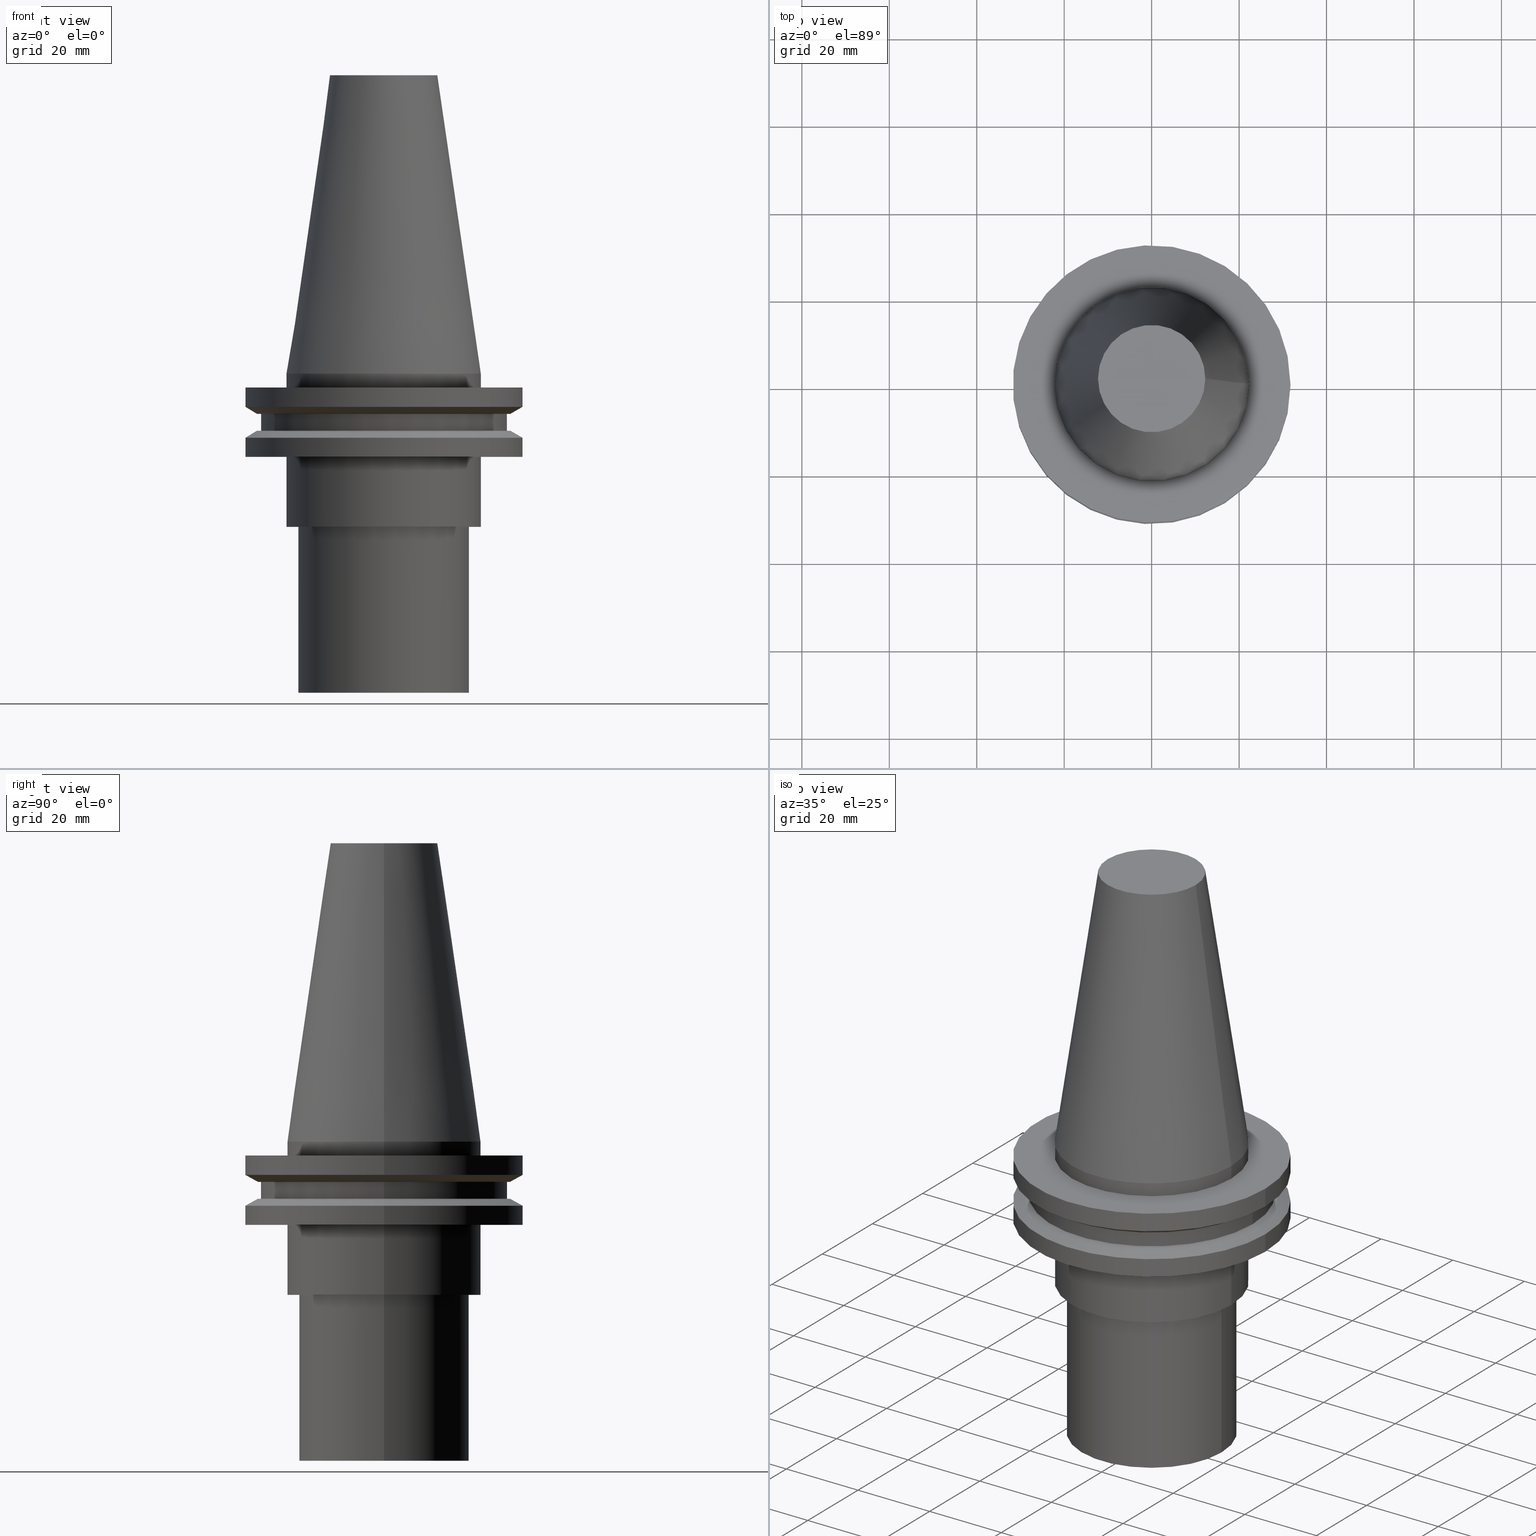
[diagram: canonical four-view strip — front | top / right | iso, engineering-drawing reading convention]
A machine part, canonical four-view strip (front | top / right | iso — engineering-drawing reading convention). The complete STEP part file that produces these views, byte-faithful:
ISO-10303-21;
HEADER;
FILE_DESCRIPTION (( 'STEP AP203' ),
    '1' );
FILE_NAME ('11.326.841.stp',
    '2022-03-09T15:06:43',
    ( '' ),
    ( '' ),
    'SwSTEP 2.0',
    'SolidWorks 2021',
    '' );
FILE_SCHEMA (( 'CONFIG_CONTROL_DESIGN' ));
ENDSEC;

DATA;
#1 = PERSON_AND_ORGANIZATION ( #208, #95 ) ;
#2 = FACE_BOUND ( 'NONE', #115, .T. ) ;
#3 = MECHANICAL_CONTEXT ( 'NONE', #206, 'mechanical' ) ;
#4 = DIRECTION ( 'NONE',  ( 0.000000000000000000, 0.000000000000000000, -1.000000000000000000 ) ) ;
#5 = CIRCLE ( 'NONE', #65, 12.27178102086201150 ) ;
#6 = AXIS2_PLACEMENT_3D ( 'NONE', #21, #49, #29 ) ;
#7 = DIRECTION ( 'NONE',  ( 1.000000000000000000, 0.000000000000000000, 0.000000000000000000 ) ) ;
#8 = DIRECTION ( 'NONE',  ( 1.000000000000000000, 0.000000000000000000, 0.000000000000000000 ) ) ;
#9 = DIRECTION ( 'NONE',  ( -0.000000000000000000, -0.000000000000000000, 1.000000000000000000 ) ) ;
#10 = APPROVAL ( #144, 'UNSPECIFIED' ) ;
#11 = EDGE_CURVE ( 'NONE', #199, #199, #195, .T. ) ;
#12 = AXIS2_PLACEMENT_3D ( 'NONE', #288, #46, #253 ) ;
#13 = PLANE ( 'NONE',  #264 ) ;
#14 = AXIS2_PLACEMENT_3D ( 'NONE', #183, #96, #8 ) ;
#15 = FACE_OUTER_BOUND ( 'NONE', #286, .T. ) ;
#16 = CC_DESIGN_PERSON_AND_ORGANIZATION_ASSIGNMENT ( #123, #274, ( #26 ) ) ;
#17 = CYLINDRICAL_SURFACE ( 'NONE', #330, 31.75000000000000000 ) ;
#18 = DIRECTION ( 'NONE',  ( 1.000000000000000000, 0.000000000000000000, 0.000000000000000000 ) ) ;
#19 = CIRCLE ( 'NONE', #299, 19.49999999999999289 ) ;
#20 = DIRECTION ( 'NONE',  ( -1.000000000000000000, 0.000000000000000000, -0.000000000000000000 ) ) ;
#21 = CARTESIAN_POINT ( 'NONE',  ( 0.000000000000000000, 0.000000000000000000, 68.25000000000000000 ) ) ;
#22 = ORIENTED_EDGE ( 'NONE', *, *, #164, .F. ) ;
#23 = CC_DESIGN_DATE_AND_TIME_ASSIGNMENT ( #279, #244, ( #26 ) ) ;
#24 = FACE_OUTER_BOUND ( 'NONE', #354, .T. ) ;
#25 = EDGE_LOOP ( 'NONE', ( #117 ) ) ;
#26 = SECURITY_CLASSIFICATION ( '', '', #87 ) ;
#27 = FACE_OUTER_BOUND ( 'NONE', #31, .T. ) ;
#28 = ORIENTED_EDGE ( 'NONE', *, *, #73, .T. ) ;
#29 = DIRECTION ( 'NONE',  ( 1.000000000000000000, 0.000000000000000000, 0.000000000000000000 ) ) ;
#30 = CC_DESIGN_PERSON_AND_ORGANIZATION_ASSIGNMENT ( #124, #37, ( #388 ) ) ;
#31 = EDGE_LOOP ( 'NONE', ( #263 ) ) ;
#32 = CARTESIAN_POINT ( 'NONE',  ( 12.27178102086201150, 0.000000000000000000, 68.25000000000000000 ) ) ;
#33 = APPROVAL_STATUS ( 'not_yet_approved' ) ;
#34 = PLANE ( 'NONE',  #271 ) ;
#35 = FACE_OUTER_BOUND ( 'NONE', #53, .T. ) ;
#36 = CIRCLE ( 'NONE', #212, 31.75000000000000000 ) ;
#37 = PERSON_AND_ORGANIZATION_ROLE ( 'design_owner' ) ;
#38 = APPROVAL_PERSON_ORGANIZATION ( #1, #187, #277 ) ;
#39 = APPROVAL_ROLE ( '' ) ;
#40 = EDGE_CURVE ( 'NONE', #353, #353, #36, .T. ) ;
#41 = CARTESIAN_POINT ( 'NONE',  ( 0.000000000000000000, 0.000000000000000000, -13.05499999999999794 ) ) ;
#42 = CIRCLE ( 'NONE', #128, 31.75000000000000000 ) ;
#43 = DIRECTION ( 'NONE',  ( 1.000000000000000000, 0.000000000000000000, 0.000000000000000000 ) ) ;
#44 = LOCAL_TIME ( 9, 6, 43.00000000000000000, #368 ) ;
#45 = CARTESIAN_POINT ( 'NONE',  ( 0.000000000000000000, 0.000000000000000000, -9.205000000000005400 ) ) ;
#46 = DIRECTION ( 'NONE',  ( -0.000000000000000000, -0.000000000000000000, 1.000000000000000000 ) ) ;
#47 = CARTESIAN_POINT ( 'NONE',  ( 0.000000000000000000, 28.17999999999999972, -13.05499999999999794 ) ) ;
#48 = EDGE_LOOP ( 'NONE', ( #88 ) ) ;
#49 = DIRECTION ( 'NONE',  ( -0.000000000000000000, -0.000000000000000000, 1.000000000000000000 ) ) ;
#50 = EDGE_LOOP ( 'NONE', ( #55 ) ) ;
#51 = CONICAL_SURFACE ( 'NONE', #383, 22.22500000000000142, 0.1448138465474119174 ) ;
#52 = AXIS2_PLACEMENT_3D ( 'NONE', #240, #296, #262 ) ;
#53 = EDGE_LOOP ( 'NONE', ( #318 ) ) ;
#54 = VERTEX_POINT ( 'NONE', #111 ) ;
#55 = ORIENTED_EDGE ( 'NONE', *, *, #100, .F. ) ;
#56 = PERSON_AND_ORGANIZATION ( #208, #95 ) ;
#57 = EDGE_LOOP ( 'NONE', ( #295 ) ) ;
#58 = AXIS2_PLACEMENT_3D ( 'NONE', #347, #316, #158 ) ;
#59 = DATE_AND_TIME ( #306, #72 ) ;
#60 = CARTESIAN_POINT ( 'NONE',  ( 0.000000000000000000, 0.000000000000000000, -9.204999999999991189 ) ) ;
#61 = EDGE_CURVE ( 'NONE', #324, #324, #42, .T. ) ;
#62 = DATE_AND_TIME ( #303, #44 ) ;
#63 = CARTESIAN_POINT ( 'NONE',  ( 0.000000000000000000, 19.49999999999999289, -73.00000000000000000 ) ) ;
#64 = DIRECTION ( 'NONE',  ( 1.000000000000000000, 0.000000000000000000, 0.000000000000000000 ) ) ;
#65 = AXIS2_PLACEMENT_3D ( 'NONE', #220, #341, #69 ) ;
#66 = APPROVAL_DATE_TIME ( #337, #187 ) ;
#67 = DIRECTION ( 'NONE',  ( 1.000000000000000000, 0.000000000000000000, 0.000000000000000000 ) ) ;
#68 = CARTESIAN_POINT ( 'NONE',  ( 0.000000000000000000, 0.000000000000000000, 68.25000000000000000 ) ) ;
#69 = DIRECTION ( 'NONE',  ( 1.000000000000000000, 0.000000000000000000, 0.000000000000000000 ) ) ;
#70 = AXIS2_PLACEMENT_3D ( 'NONE', #47, #132, #20 ) ;
#71 = DIRECTION ( 'NONE',  ( -0.000000000000000000, -0.000000000000000000, 1.000000000000000000 ) ) ;
#72 = LOCAL_TIME ( 9, 6, 43.00000000000000000, #179 ) ;
#73 = EDGE_CURVE ( 'NONE', #294, #294, #357, .T. ) ;
#74 = CYLINDRICAL_SURFACE ( 'NONE', #371, 31.75000000000000000 ) ;
#75 = FACE_OUTER_BOUND ( 'NONE', #225, .T. ) ;
#76 = AXIS2_PLACEMENT_3D ( 'NONE', #60, #9, #101 ) ;
#77 =( NAMED_UNIT ( * ) SI_UNIT ( $, .STERADIAN. ) SOLID_ANGLE_UNIT ( ) );
#78 = ORIENTED_EDGE ( 'NONE', *, *, #40, .T. ) ;
#79 = FACE_OUTER_BOUND ( 'NONE', #235, .T. ) ;
#80 = EDGE_LOOP ( 'NONE', ( #231 ) ) ;
#81 = CARTESIAN_POINT ( 'NONE',  ( 0.000000000000000000, 22.22500000000000142, -35.04999999999999716 ) ) ;
#82 = EDGE_LOOP ( 'NONE', ( #198 ) ) ;
#83 = AXIS2_PLACEMENT_3D ( 'NONE', #41, #226, #161 ) ;
#84 = EDGE_CURVE ( 'NONE', #385, #385, #127, .T. ) ;
#85 = CARTESIAN_POINT ( 'NONE',  ( 22.22500000000000142, 0.000000000000000000, -35.04999999999999716 ) ) ;
#86 = EDGE_LOOP ( 'NONE', ( #207 ) ) ;
#87 = SECURITY_CLASSIFICATION_LEVEL ( 'unclassified' ) ;
#88 = ORIENTED_EDGE ( 'NONE', *, *, #156, .T. ) ;
#89 = PERSON_AND_ORGANIZATION ( #208, #95 ) ;
#90 = PRODUCT_DEFINITION ( 'UNKNOWN', '', #203, #333 ) ;
#91 = CARTESIAN_POINT ( 'NONE',  ( 0.000000000000000000, 0.000000000000000000, -13.05499999999999794 ) ) ;
#92 = ADVANCED_FACE ( 'NONE', ( #336, #215 ), #246, .F. ) ;
#93 = UNCERTAINTY_MEASURE_WITH_UNIT (LENGTH_MEASURE( 1.000000000000000082E-05 ), #391, 'distance_accuracy_value', 'NONE');
#94 = AXIS2_PLACEMENT_3D ( 'NONE', #342, #260, #153 ) ;
#95 = ORGANIZATION ( 'UNSPECIFIED', 'UNSPECIFIED', '' ) ;
#96 = DIRECTION ( 'NONE',  ( 0.000000000000000000, 0.000000000000000000, 1.000000000000000000 ) ) ;
#97 = CARTESIAN_POINT ( 'NONE',  ( 0.000000000000000000, 0.000000000000000000, 0.000000000000000000 ) ) ;
#98 = DATE_AND_TIME ( #126, #384 ) ;
#99 = CIRCLE ( 'NONE', #308, 22.22500000000000142 ) ;
#100 = EDGE_CURVE ( 'NONE', #54, #54, #19, .T. ) ;
#101 = DIRECTION ( 'NONE',  ( 1.000000000000000000, 0.000000000000000000, 0.000000000000000000 ) ) ;
#102 = CARTESIAN_POINT ( 'NONE',  ( 0.000000000000000000, 0.000000000000000000, 68.25000000000000000 ) ) ;
#103 = DIRECTION ( 'NONE',  ( 1.000000000000000000, 0.000000000000000000, 0.000000000000000000 ) ) ;
#104 = CARTESIAN_POINT ( 'NONE',  ( 0.000000000000000000, 0.000000000000000000, -3.174999999999997158 ) ) ;
#105 = APPROVAL_PERSON_ORGANIZATION ( #300, #335, #39 ) ;
#106 = FACE_BOUND ( 'NONE', #110, .T. ) ;
#107 = EDGE_LOOP ( 'NONE', ( #166 ) ) ;
#108 = ADVANCED_FACE ( 'NONE', ( #2, #275 ), #51, .T. ) ;
#109 = FACE_OUTER_BOUND ( 'NONE', #25, .T. ) ;
#110 = EDGE_LOOP ( 'NONE', ( #382 ) ) ;
#111 = CARTESIAN_POINT ( 'NONE',  ( 19.49999999999999289, 0.000000000000000000, -73.00000000000000000 ) ) ;
#112 = AXIS2_PLACEMENT_3D ( 'NONE', #224, #311, #18 ) ;
#113 = EDGE_LOOP ( 'NONE', ( #175 ) ) ;
#114 = CARTESIAN_POINT ( 'NONE',  ( 28.97919780457008088, 0.000000000000000000, -13.05499999999999794 ) ) ;
#115 = EDGE_LOOP ( 'NONE', ( #325 ) ) ;
#116 = CARTESIAN_POINT ( 'NONE',  ( 28.17999999999999972, 0.000000000000000000, -9.204999999999991189 ) ) ;
#117 = ORIENTED_EDGE ( 'NONE', *, *, #230, .T. ) ;
#118 = CYLINDRICAL_SURFACE ( 'NONE', #6, 22.22500000000000142 ) ;
#119 = EDGE_LOOP ( 'NONE', ( #322 ) ) ;
#120 = CONICAL_SURFACE ( 'NONE', #323, 28.97919780457007732, 1.047197551196598297 ) ;
#121 = ORIENTED_EDGE ( 'NONE', *, *, #282, .F. ) ;
#122 = APPLICATION_PROTOCOL_DEFINITION ( 'international standard', 'config_control_design', 1994, #185 ) ;
#123 = PERSON_AND_ORGANIZATION ( #208, #95 ) ;
#124 = PERSON_AND_ORGANIZATION ( #208, #95 ) ;
#125 = DIRECTION ( 'NONE',  ( 1.000000000000000000, 0.000000000000000000, 0.000000000000000000 ) ) ;
#126 = CALENDAR_DATE ( 2022, 9, 3 ) ;
#127 = CIRCLE ( 'NONE', #222, 28.97919780457008088 ) ;
#128 = AXIS2_PLACEMENT_3D ( 'NONE', #304, #184, #7 ) ;
#129 = CYLINDRICAL_SURFACE ( 'NONE', #313, 28.17999999999999972 ) ;
#130 = EDGE_CURVE ( 'NONE', #232, #232, #377, .T. ) ;
#131 = FACE_OUTER_BOUND ( 'NONE', #80, .T. ) ;
#132 = DIRECTION ( 'NONE',  ( 0.000000000000000000, 0.000000000000000000, -1.000000000000000000 ) ) ;
#133 = FACE_OUTER_BOUND ( 'NONE', #107, .T. ) ;
#134 = DIRECTION ( 'NONE',  ( 1.000000000000000000, 0.000000000000000000, 0.000000000000000000 ) ) ;
#135 = ORIENTED_EDGE ( 'NONE', *, *, #289, .F. ) ;
#136 = PLANE ( 'NONE',  #378 ) ;
#137 =( GEOMETRIC_REPRESENTATION_CONTEXT ( 3 ) GLOBAL_UNCERTAINTY_ASSIGNED_CONTEXT ( ( #93 ) ) GLOBAL_UNIT_ASSIGNED_CONTEXT ( ( #391, #237, #77 ) ) REPRESENTATION_CONTEXT ( 'NONE', 'WORKASPACE' ) );
#138 = ORIENTED_EDGE ( 'NONE', *, *, #218, .T. ) ;
#139 = VERTEX_POINT ( 'NONE', #171 ) ;
#140 = EDGE_LOOP ( 'NONE', ( #395 ) ) ;
#141 = CARTESIAN_POINT ( 'NONE',  ( 28.97919780457007732, 0.000000000000000000, -9.205000000000005400 ) ) ;
#142 = CARTESIAN_POINT ( 'NONE',  ( 0.000000000000000000, 0.000000000000000000, -19.04999999999999716 ) ) ;
#143 = ORIENTED_EDGE ( 'NONE', *, *, #11, .T. ) ;
#144 = APPROVAL_STATUS ( 'not_yet_approved' ) ;
#145 = COORDINATED_UNIVERSAL_TIME_OFFSET ( 6, 0, .BEHIND. ) ;
#146 = CC_DESIGN_PERSON_AND_ORGANIZATION_ASSIGNMENT ( #242, #147, ( #90 ) ) ;
#147 = PERSON_AND_ORGANIZATION_ROLE ( 'creator' ) ;
#148 = APPROVAL_ROLE ( '' ) ;
#149 = DIRECTION ( 'NONE',  ( -0.000000000000000000, -0.000000000000000000, 1.000000000000000000 ) ) ;
#150 = CALENDAR_DATE ( 2022, 9, 3 ) ;
#151 = DIRECTION ( 'NONE',  ( -0.000000000000000000, -0.000000000000000000, 1.000000000000000000 ) ) ;
#152 = ADVANCED_FACE ( 'NONE', ( #35, #251 ), #364, .T. ) ;
#153 = DIRECTION ( 'NONE',  ( 1.000000000000000000, 0.000000000000000000, 0.000000000000000000 ) ) ;
#154 = CC_DESIGN_PERSON_AND_ORGANIZATION_ASSIGNMENT ( #56, #213, ( #203 ) ) ;
#155 = AXIS2_PLACEMENT_3D ( 'NONE', #281, #376, #283 ) ;
#156 = EDGE_CURVE ( 'NONE', #298, #298, #350, .T. ) ;
#157 = CC_DESIGN_APPROVAL ( #335, ( #26 ) ) ;
#158 = DIRECTION ( 'NONE',  ( 1.000000000000000000, 0.000000000000000000, 0.000000000000000000 ) ) ;
#159 = DIRECTION ( 'NONE',  ( -0.000000000000000000, -0.000000000000000000, 1.000000000000000000 ) ) ;
#160 = MANIFOLD_SOLID_BREP ( 'CKB', #287 ) ;
#161 = DIRECTION ( 'NONE',  ( 1.000000000000000000, 0.000000000000000000, 0.000000000000000000 ) ) ;
#162 = AXIS2_PLACEMENT_3D ( 'NONE', #217, #370, #125 ) ;
#163 = DIRECTION ( 'NONE',  ( -0.000000000000000000, -0.000000000000000000, 1.000000000000000000 ) ) ;
#164 = EDGE_CURVE ( 'NONE', #139, #139, #190, .T. ) ;
#165 = VERTEX_POINT ( 'NONE', #32 ) ;
#166 = ORIENTED_EDGE ( 'NONE', *, *, #84, .T. ) ;
#167 = CARTESIAN_POINT ( 'NONE',  ( 31.75000000000000000, 0.000000000000000000, -14.65472339340266572 ) ) ;
#168 = ADVANCED_BREP_SHAPE_REPRESENTATION ( '11.326.841', ( #160, #14 ), #137 ) ;
#169 = ORIENTED_EDGE ( 'NONE', *, *, #11, .F. ) ;
#170 = ADVANCED_FACE ( 'NONE', ( #249 ), #34, .F. ) ;
#171 = CARTESIAN_POINT ( 'NONE',  ( 22.22500000000000142, 0.000000000000000000, 0.000000000000000000 ) ) ;
#172 = ORIENTED_EDGE ( 'NONE', *, *, #289, .T. ) ;
#173 = CARTESIAN_POINT ( 'NONE',  ( 28.17999999999999972, 0.000000000000000000, -13.05499999999999794 ) ) ;
#174 = EDGE_LOOP ( 'NONE', ( #121 ) ) ;
#175 = ORIENTED_EDGE ( 'NONE', *, *, #61, .F. ) ;
#176 = AXIS2_PLACEMENT_3D ( 'NONE', #68, #301, #273 ) ;
#177 = LOCAL_TIME ( 9, 6, 43.00000000000000000, #361 ) ;
#178 = DIRECTION ( 'NONE',  ( -0.000000000000000000, -0.000000000000000000, 1.000000000000000000 ) ) ;
#179 = COORDINATED_UNIVERSAL_TIME_OFFSET ( 6, 0, .BEHIND. ) ;
#180 = DATE_TIME_ROLE ( 'creation_date' ) ;
#181 = DIRECTION ( 'NONE',  ( 1.000000000000000000, 0.000000000000000000, 0.000000000000000000 ) ) ;
#182 = AXIS2_PLACEMENT_3D ( 'NONE', #340, #305, #181 ) ;
#183 = CARTESIAN_POINT ( 'NONE',  ( 0.000000000000000000, 0.000000000000000000, 0.000000000000000000 ) ) ;
#184 = DIRECTION ( 'NONE',  ( -0.000000000000000000, -0.000000000000000000, 1.000000000000000000 ) ) ;
#185 = APPLICATION_CONTEXT ( 'configuration controlled 3d designs of mechanical parts and assemblies' ) ;
#186 = FACE_OUTER_BOUND ( 'NONE', #233, .T. ) ;
#187 = APPROVAL ( #33, 'UNSPECIFIED' ) ;
#188 = ADVANCED_FACE ( 'NONE', ( #338, #280 ), #219, .T. ) ;
#189 = FACE_OUTER_BOUND ( 'NONE', #174, .T. ) ;
#190 = CIRCLE ( 'NONE', #393, 22.22500000000000142 ) ;
#191 = CC_DESIGN_APPROVAL ( #10, ( #90 ) ) ;
#192 = DIRECTION ( 'NONE',  ( 1.000000000000000000, 0.000000000000000000, 0.000000000000000000 ) ) ;
#193 = CARTESIAN_POINT ( 'NONE',  ( 0.000000000000000000, 0.000000000000000000, 68.25000000000000000 ) ) ;
#194 = FACE_BOUND ( 'NONE', #140, .T. ) ;
#195 = CIRCLE ( 'NONE', #343, 22.22500000000000142 ) ;
#196 = ORIENTED_EDGE ( 'NONE', *, *, #282, .T. ) ;
#197 = APPLICATION_PROTOCOL_DEFINITION ( 'international standard', 'config_control_design', 1994, #206 ) ;
#198 = ORIENTED_EDGE ( 'NONE', *, *, #164, .T. ) ;
#199 = VERTEX_POINT ( 'NONE', #321 ) ;
#200 = EDGE_LOOP ( 'NONE', ( #390 ) ) ;
#201 = FACE_BOUND ( 'NONE', #266, .T. ) ;
#202 = CIRCLE ( 'NONE', #12, 19.49999999999999289 ) ;
#203 = PRODUCT_DEFINITION_FORMATION_WITH_SPECIFIED_SOURCE ( 'ANY', '', #388, .NOT_KNOWN. ) ;
#204 = DIRECTION ( 'NONE',  ( 1.000000000000000000, 0.000000000000000000, 0.000000000000000000 ) ) ;
#205 = DIRECTION ( 'NONE',  ( -0.000000000000000000, -0.000000000000000000, 1.000000000000000000 ) ) ;
#206 = APPLICATION_CONTEXT ( 'configuration controlled 3d designs of mechanical parts and assemblies' ) ;
#207 = ORIENTED_EDGE ( 'NONE', *, *, #40, .F. ) ;
#208 = PERSON ( 'UNSPECIFIED', 'UNSPECIFIED', 'UNSPECIFIED', ('UNSPECIFIED'), ('UNSPECIFIED'), ('UNSPECIFIED') ) ;
#209 = PERSON_AND_ORGANIZATION ( #208, #95 ) ;
#210 = CARTESIAN_POINT ( 'NONE',  ( 0.000000000000000000, 0.000000000000000000, 0.000000000000000000 ) ) ;
#211 = ADVANCED_FACE ( 'NONE', ( #109 ), #13, .F. ) ;
#212 = AXIS2_PLACEMENT_3D ( 'NONE', #238, #205, #387 ) ;
#213 = PERSON_AND_ORGANIZATION_ROLE ( 'creator' ) ;
#214 = DIRECTION ( 'NONE',  ( 1.000000000000000000, 0.000000000000000000, 0.000000000000000000 ) ) ;
#215 = FACE_BOUND ( 'NONE', #392, .T. ) ;
#216 = APPROVAL_DATE_TIME ( #62, #10 ) ;
#217 = CARTESIAN_POINT ( 'NONE',  ( 0.000000000000000000, 0.000000000000000000, -9.205000000000005400 ) ) ;
#218 = EDGE_CURVE ( 'NONE', #267, #267, #202, .T. ) ;
#219 = CYLINDRICAL_SURFACE ( 'NONE', #176, 22.22500000000000142 ) ;
#220 = CARTESIAN_POINT ( 'NONE',  ( 0.000000000000000000, 0.000000000000000000, 68.25000000000000000 ) ) ;
#221 = PLANE ( 'NONE',  #94 ) ;
#222 = AXIS2_PLACEMENT_3D ( 'NONE', #91, #149, #332 ) ;
#223 = FACE_OUTER_BOUND ( 'NONE', #86, .T. ) ;
#224 = CARTESIAN_POINT ( 'NONE',  ( 0.000000000000000000, 0.000000000000000000, -7.605276606597335842 ) ) ;
#225 = EDGE_LOOP ( 'NONE', ( #327 ) ) ;
#226 = DIRECTION ( 'NONE',  ( -0.000000000000000000, -0.000000000000000000, 1.000000000000000000 ) ) ;
#227 = ORIENTED_EDGE ( 'NONE', *, *, #130, .F. ) ;
#228 = CIRCLE ( 'NONE', #58, 22.22500000000000142 ) ;
#229 = APPROVAL_PERSON_ORGANIZATION ( #209, #10, #148 ) ;
#230 = EDGE_CURVE ( 'NONE', #165, #165, #5, .T. ) ;
#231 = ORIENTED_EDGE ( 'NONE', *, *, #61, .T. ) ;
#232 = VERTEX_POINT ( 'NONE', #116 ) ;
#233 = EDGE_LOOP ( 'NONE', ( #196 ) ) ;
#234 = CARTESIAN_POINT ( 'NONE',  ( 31.75000000000000000, 0.000000000000000000, -7.605276606597335842 ) ) ;
#235 = EDGE_LOOP ( 'NONE', ( #78 ) ) ;
#236 = PRODUCT_DEFINITION_SHAPE ( 'NONE', 'NONE',  #90 ) ;
#237 =( NAMED_UNIT ( * ) PLANE_ANGLE_UNIT ( ) SI_UNIT ( $, .RADIAN. ) );
#238 = CARTESIAN_POINT ( 'NONE',  ( 0.000000000000000000, 0.000000000000000000, -14.65472339340266572 ) ) ;
#239 = EDGE_CURVE ( 'NONE', #389, #389, #228, .T. ) ;
#240 = CARTESIAN_POINT ( 'NONE',  ( 0.000000000000000000, 0.000000000000000000, -14.65472339340266572 ) ) ;
#241 = EDGE_LOOP ( 'NONE', ( #135 ) ) ;
#242 = PERSON_AND_ORGANIZATION ( #208, #95 ) ;
#243 = DIRECTION ( 'NONE',  ( 1.000000000000000000, 0.000000000000000000, 0.000000000000000000 ) ) ;
#244 = DATE_TIME_ROLE ( 'classification_date' ) ;
#245 = CC_DESIGN_PERSON_AND_ORGANIZATION_ASSIGNMENT ( #89, #309, ( #203 ) ) ;
#246 = PLANE ( 'NONE',  #182 ) ;
#247 = AXIS2_PLACEMENT_3D ( 'NONE', #97, #310, #334 ) ;
#248 = DIRECTION ( 'NONE',  ( -1.000000000000000000, 0.000000000000000000, 0.000000000000000000 ) ) ;
#249 = FACE_OUTER_BOUND ( 'NONE', #50, .T. ) ;
#250 = ADVANCED_FACE ( 'NONE', ( #189, #349 ), #120, .T. ) ;
#251 = FACE_OUTER_BOUND ( 'NONE', #297, .T. ) ;
#252 = AXIS2_PLACEMENT_3D ( 'NONE', #362, #307, #243 ) ;
#253 = DIRECTION ( 'NONE',  ( 1.000000000000000000, 0.000000000000000000, 0.000000000000000000 ) ) ;
#254 = CC_DESIGN_DATE_AND_TIME_ASSIGNMENT ( #98, #180, ( #90 ) ) ;
#255 = FACE_OUTER_BOUND ( 'NONE', #113, .T. ) ;
#256 = FACE_OUTER_BOUND ( 'NONE', #270, .T. ) ;
#257 = CIRCLE ( 'NONE', #112, 31.75000000000000000 ) ;
#258 = LOCAL_TIME ( 9, 6, 43.00000000000000000, #145 ) ;
#259 = FACE_BOUND ( 'NONE', #241, .T. ) ;
#260 = DIRECTION ( 'NONE',  ( 0.000000000000000000, -0.000000000000000000, 1.000000000000000000 ) ) ;
#261 = ADVANCED_FACE ( 'NONE', ( #255, #186 ), #17, .T. ) ;
#262 = DIRECTION ( 'NONE',  ( -1.000000000000000000, 0.000000000000000000, 0.000000000000000000 ) ) ;
#263 = ORIENTED_EDGE ( 'NONE', *, *, #239, .F. ) ;
#264 = AXIS2_PLACEMENT_3D ( 'NONE', #373, #379, #315 ) ;
#265 = DIRECTION ( 'NONE',  ( 0.000000000000000000, -0.000000000000000000, 1.000000000000000000 ) ) ;
#266 = EDGE_LOOP ( 'NONE', ( #138 ) ) ;
#267 = VERTEX_POINT ( 'NONE', #355 ) ;
#268 = ORIENTED_EDGE ( 'NONE', *, *, #239, .T. ) ;
#269 = CARTESIAN_POINT ( 'NONE',  ( 22.22500000000000142, 0.000000000000000000, -3.174999999999997158 ) ) ;
#270 = EDGE_LOOP ( 'NONE', ( #172 ) ) ;
#271 = AXIS2_PLACEMENT_3D ( 'NONE', #63, #369, #67 ) ;
#272 = COORDINATED_UNIVERSAL_TIME_OFFSET ( 6, 0, .BEHIND. ) ;
#273 = DIRECTION ( 'NONE',  ( 1.000000000000000000, 0.000000000000000000, 0.000000000000000000 ) ) ;
#274 = PERSON_AND_ORGANIZATION_ROLE ( 'classification_officer' ) ;
#275 = FACE_OUTER_BOUND ( 'NONE', #82, .T. ) ;
#276 = CONICAL_SURFACE ( 'NONE', #52, 31.75000000000000000, 1.047197551196597853 ) ;
#277 = APPROVAL_ROLE ( '' ) ;
#278 = CARTESIAN_POINT ( 'NONE',  ( 0.000000000000000000, 0.000000000000000000, -73.00000000000000000 ) ) ;
#279 = DATE_AND_TIME ( #365, #258 ) ;
#280 = FACE_OUTER_BOUND ( 'NONE', #57, .T. ) ;
#281 = CARTESIAN_POINT ( 'NONE',  ( 0.000000000000000000, 31.75000000000000000, -3.174999999999993605 ) ) ;
#282 = EDGE_CURVE ( 'NONE', #351, #351, #257, .T. ) ;
#283 = DIRECTION ( 'NONE',  ( -1.000000000000000000, 0.000000000000000000, -0.000000000000000000 ) ) ;
#284 = PLANE ( 'NONE',  #155 ) ;
#285 = DIRECTION ( 'NONE',  ( -0.000000000000000000, -0.000000000000000000, 1.000000000000000000 ) ) ;
#286 = EDGE_LOOP ( 'NONE', ( #227 ) ) ;
#287 = CLOSED_SHELL ( 'NONE', ( #108, #211, #386, #375, #92, #367, #372, #314, #358, #302, #250, #261, #348, #188, #152, #170 ) ) ;
#288 = CARTESIAN_POINT ( 'NONE',  ( 0.000000000000000000, 0.000000000000000000, -35.04999999999999716 ) ) ;
#289 = EDGE_CURVE ( 'NONE', #290, #290, #339, .T. ) ;
#290 = VERTEX_POINT ( 'NONE', #173 ) ;
#291 = FACE_BOUND ( 'NONE', #119, .T. ) ;
#292 = EDGE_LOOP ( 'NONE', ( #22 ) ) ;
#293 = CC_DESIGN_SECURITY_CLASSIFICATION ( #26, ( #203 ) ) ;
#294 = VERTEX_POINT ( 'NONE', #394 ) ;
#295 = ORIENTED_EDGE ( 'NONE', *, *, #329, .T. ) ;
#296 = DIRECTION ( 'NONE',  ( 0.000000000000000000, 0.000000000000000000, -1.000000000000000000 ) ) ;
#297 = EDGE_LOOP ( 'NONE', ( #328 ) ) ;
#298 = VERTEX_POINT ( 'NONE', #141 ) ;
#299 = AXIS2_PLACEMENT_3D ( 'NONE', #278, #178, #64 ) ;
#300 = PERSON_AND_ORGANIZATION ( #208, #95 ) ;
#301 = DIRECTION ( 'NONE',  ( -0.000000000000000000, -0.000000000000000000, 1.000000000000000000 ) ) ;
#302 = ADVANCED_FACE ( 'NONE', ( #75, #194 ), #221, .F. ) ;
#303 = CALENDAR_DATE ( 2022, 9, 3 ) ;
#304 = CARTESIAN_POINT ( 'NONE',  ( 0.000000000000000000, 0.000000000000000000, -3.174999999999997158 ) ) ;
#305 = DIRECTION ( 'NONE',  ( 0.000000000000000000, -0.000000000000000000, 1.000000000000000000 ) ) ;
#306 = CALENDAR_DATE ( 2022, 9, 3 ) ;
#307 = DIRECTION ( 'NONE',  ( -0.000000000000000000, -0.000000000000000000, 1.000000000000000000 ) ) ;
#308 = AXIS2_PLACEMENT_3D ( 'NONE', #104, #163, #380 ) ;
#309 = PERSON_AND_ORGANIZATION_ROLE ( 'design_supplier' ) ;
#310 = DIRECTION ( 'NONE',  ( -0.000000000000000000, -0.000000000000000000, 1.000000000000000000 ) ) ;
#311 = DIRECTION ( 'NONE',  ( -0.000000000000000000, -0.000000000000000000, 1.000000000000000000 ) ) ;
#312 = DIRECTION ( 'NONE',  ( -0.000000000000000000, -0.000000000000000000, 1.000000000000000000 ) ) ;
#313 = AXIS2_PLACEMENT_3D ( 'NONE', #102, #71, #192 ) ;
#314 = ADVANCED_FACE ( 'NONE', ( #259, #133 ), #317, .F. ) ;
#315 = DIRECTION ( 'NONE',  ( -1.000000000000000000, 0.000000000000000000, -0.000000000000000000 ) ) ;
#316 = DIRECTION ( 'NONE',  ( -0.000000000000000000, -0.000000000000000000, 1.000000000000000000 ) ) ;
#317 = PLANE ( 'NONE',  #70 ) ;
#318 = ORIENTED_EDGE ( 'NONE', *, *, #218, .F. ) ;
#319 = CARTESIAN_POINT ( 'NONE',  ( 31.75000000000000000, 0.000000000000000000, -3.174999999999997158 ) ) ;
#320 = DIRECTION ( 'NONE',  ( 1.000000000000000000, 0.000000000000000000, 0.000000000000000000 ) ) ;
#321 = CARTESIAN_POINT ( 'NONE',  ( 22.22500000000000142, 0.000000000000000000, -19.04999999999999716 ) ) ;
#322 = ORIENTED_EDGE ( 'NONE', *, *, #84, .F. ) ;
#323 = AXIS2_PLACEMENT_3D ( 'NONE', #45, #312, #43 ) ;
#324 = VERTEX_POINT ( 'NONE', #319 ) ;
#325 = ORIENTED_EDGE ( 'NONE', *, *, #230, .F. ) ;
#326 = FACE_OUTER_BOUND ( 'NONE', #356, .T. ) ;
#327 = ORIENTED_EDGE ( 'NONE', *, *, #156, .F. ) ;
#328 = ORIENTED_EDGE ( 'NONE', *, *, #100, .T. ) ;
#329 = EDGE_CURVE ( 'NONE', #381, #381, #99, .T. ) ;
#330 = AXIS2_PLACEMENT_3D ( 'NONE', #374, #159, #103 ) ;
#331 = APPROVAL_STATUS ( 'not_yet_approved' ) ;
#332 = DIRECTION ( 'NONE',  ( 1.000000000000000000, 0.000000000000000000, 0.000000000000000000 ) ) ;
#333 = DESIGN_CONTEXT ( 'detailed design', #185, 'design' ) ;
#334 = DIRECTION ( 'NONE',  ( 1.000000000000000000, 0.000000000000000000, 0.000000000000000000 ) ) ;
#335 = APPROVAL ( #331, 'UNSPECIFIED' ) ;
#336 = FACE_OUTER_BOUND ( 'NONE', #200, .T. ) ;
#337 = DATE_AND_TIME ( #150, #177 ) ;
#338 = FACE_OUTER_BOUND ( 'NONE', #292, .T. ) ;
#339 = CIRCLE ( 'NONE', #83, 28.17999999999999972 ) ;
#340 = CARTESIAN_POINT ( 'NONE',  ( 0.000000000000000000, 31.74999999999999289, -19.04999999999999716 ) ) ;
#341 = DIRECTION ( 'NONE',  ( -0.000000000000000000, -0.000000000000000000, 1.000000000000000000 ) ) ;
#342 = CARTESIAN_POINT ( 'NONE',  ( 0.000000000000000000, 28.97919780457007732, -9.204999999999996518 ) ) ;
#343 = AXIS2_PLACEMENT_3D ( 'NONE', #142, #352, #320 ) ;
#344 = CC_DESIGN_APPROVAL ( #187, ( #203 ) ) ;
#345 = FACE_OUTER_BOUND ( 'NONE', #360, .T. ) ;
#346 = PRODUCT_RELATED_PRODUCT_CATEGORY ( 'detail', '', ( #388 ) ) ;
#347 = CARTESIAN_POINT ( 'NONE',  ( 0.000000000000000000, 0.000000000000000000, -35.04999999999999716 ) ) ;
#348 = ADVANCED_FACE ( 'NONE', ( #106, #131 ), #284, .F. ) ;
#349 = FACE_BOUND ( 'NONE', #48, .T. ) ;
#350 = CIRCLE ( 'NONE', #162, 28.97919780457007732 ) ;
#351 = VERTEX_POINT ( 'NONE', #234 ) ;
#352 = DIRECTION ( 'NONE',  ( -0.000000000000000000, -0.000000000000000000, 1.000000000000000000 ) ) ;
#353 = VERTEX_POINT ( 'NONE', #167 ) ;
#354 = EDGE_LOOP ( 'NONE', ( #169 ) ) ;
#355 = CARTESIAN_POINT ( 'NONE',  ( 19.49999999999999289, 0.000000000000000000, -35.04999999999999716 ) ) ;
#356 = EDGE_LOOP ( 'NONE', ( #268 ) ) ;
#357 = CIRCLE ( 'NONE', #252, 31.74999999999999289 ) ;
#358 = ADVANCED_FACE ( 'NONE', ( #15, #256 ), #129, .T. ) ;
#359 = APPROVAL_DATE_TIME ( #59, #335 ) ;
#360 = EDGE_LOOP ( 'NONE', ( #28 ) ) ;
#361 = COORDINATED_UNIVERSAL_TIME_OFFSET ( 6, 0, .BEHIND. ) ;
#362 = CARTESIAN_POINT ( 'NONE',  ( 0.000000000000000000, 0.000000000000000000, -19.04999999999999716 ) ) ;
#363 = SHAPE_DEFINITION_REPRESENTATION ( #236, #168 ) ;
#364 = CYLINDRICAL_SURFACE ( 'NONE', #247, 19.49999999999999289 ) ;
#365 = CALENDAR_DATE ( 2022, 9, 3 ) ;
#366 = CARTESIAN_POINT ( 'NONE',  ( 0.000000000000000000, 0.000000000000000000, 0.000000000000000000 ) ) ;
#367 = ADVANCED_FACE ( 'NONE', ( #223, #345 ), #74, .T. ) ;
#368 = COORDINATED_UNIVERSAL_TIME_OFFSET ( 6, 0, .BEHIND. ) ;
#369 = DIRECTION ( 'NONE',  ( 0.000000000000000000, -0.000000000000000000, 1.000000000000000000 ) ) ;
#370 = DIRECTION ( 'NONE',  ( -0.000000000000000000, -0.000000000000000000, 1.000000000000000000 ) ) ;
#371 = AXIS2_PLACEMENT_3D ( 'NONE', #193, #285, #204 ) ;
#372 = ADVANCED_FACE ( 'NONE', ( #291, #79 ), #276, .T. ) ;
#373 = CARTESIAN_POINT ( 'NONE',  ( 0.000000000000000000, 12.27178102086201150, 68.25000000000000000 ) ) ;
#374 = CARTESIAN_POINT ( 'NONE',  ( 0.000000000000000000, 0.000000000000000000, 68.25000000000000000 ) ) ;
#375 = ADVANCED_FACE ( 'NONE', ( #24, #326 ), #118, .T. ) ;
#376 = DIRECTION ( 'NONE',  ( 0.000000000000000000, 0.000000000000000000, -1.000000000000000000 ) ) ;
#377 = CIRCLE ( 'NONE', #76, 28.17999999999999972 ) ;
#378 = AXIS2_PLACEMENT_3D ( 'NONE', #81, #265, #134 ) ;
#379 = DIRECTION ( 'NONE',  ( 0.000000000000000000, 0.000000000000000000, -1.000000000000000000 ) ) ;
#380 = DIRECTION ( 'NONE',  ( 1.000000000000000000, 0.000000000000000000, 0.000000000000000000 ) ) ;
#381 = VERTEX_POINT ( 'NONE', #269 ) ;
#382 = ORIENTED_EDGE ( 'NONE', *, *, #329, .F. ) ;
#383 = AXIS2_PLACEMENT_3D ( 'NONE', #366, #4, #248 ) ;
#384 = LOCAL_TIME ( 9, 6, 43.00000000000000000, #272 ) ;
#385 = VERTEX_POINT ( 'NONE', #114 ) ;
#386 = ADVANCED_FACE ( 'NONE', ( #201, #27 ), #136, .F. ) ;
#387 = DIRECTION ( 'NONE',  ( 1.000000000000000000, 0.000000000000000000, 0.000000000000000000 ) ) ;
#388 = PRODUCT ( '11.326.841', '11.326.841', '', ( #3 ) ) ;
#389 = VERTEX_POINT ( 'NONE', #85 ) ;
#390 = ORIENTED_EDGE ( 'NONE', *, *, #73, .F. ) ;
#391 =( LENGTH_UNIT ( ) NAMED_UNIT ( * ) SI_UNIT ( .MILLI., .METRE. ) );
#392 = EDGE_LOOP ( 'NONE', ( #143 ) ) ;
#393 = AXIS2_PLACEMENT_3D ( 'NONE', #210, #151, #214 ) ;
#394 = CARTESIAN_POINT ( 'NONE',  ( 31.74999999999999289, 0.000000000000000000, -19.04999999999999716 ) ) ;
#395 = ORIENTED_EDGE ( 'NONE', *, *, #130, .T. ) ;
ENDSEC;
END-ISO-10303-21;
